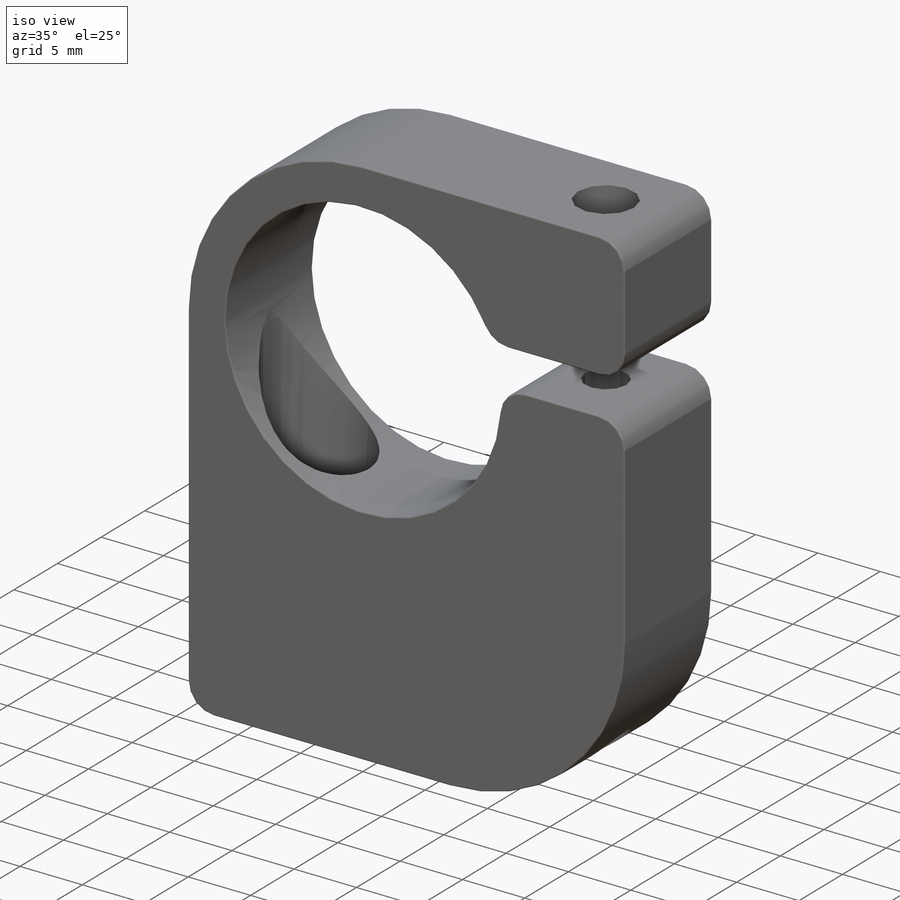
[diagram: iso view]
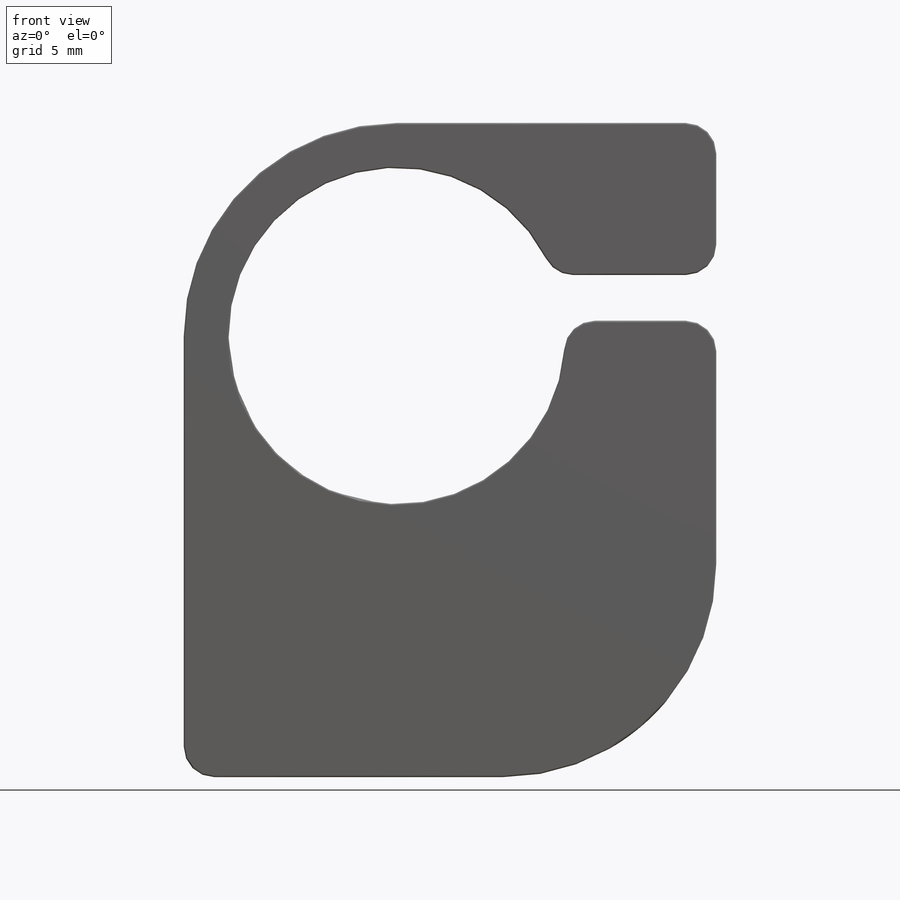
[diagram: front view]
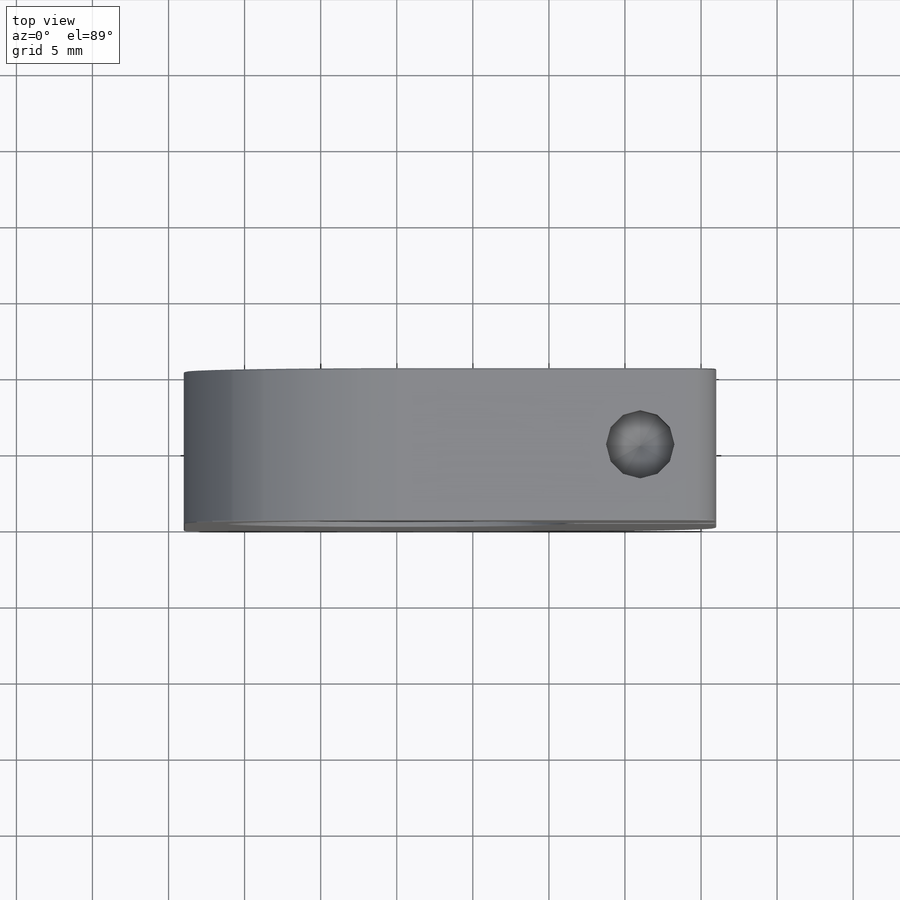
[diagram: top view]
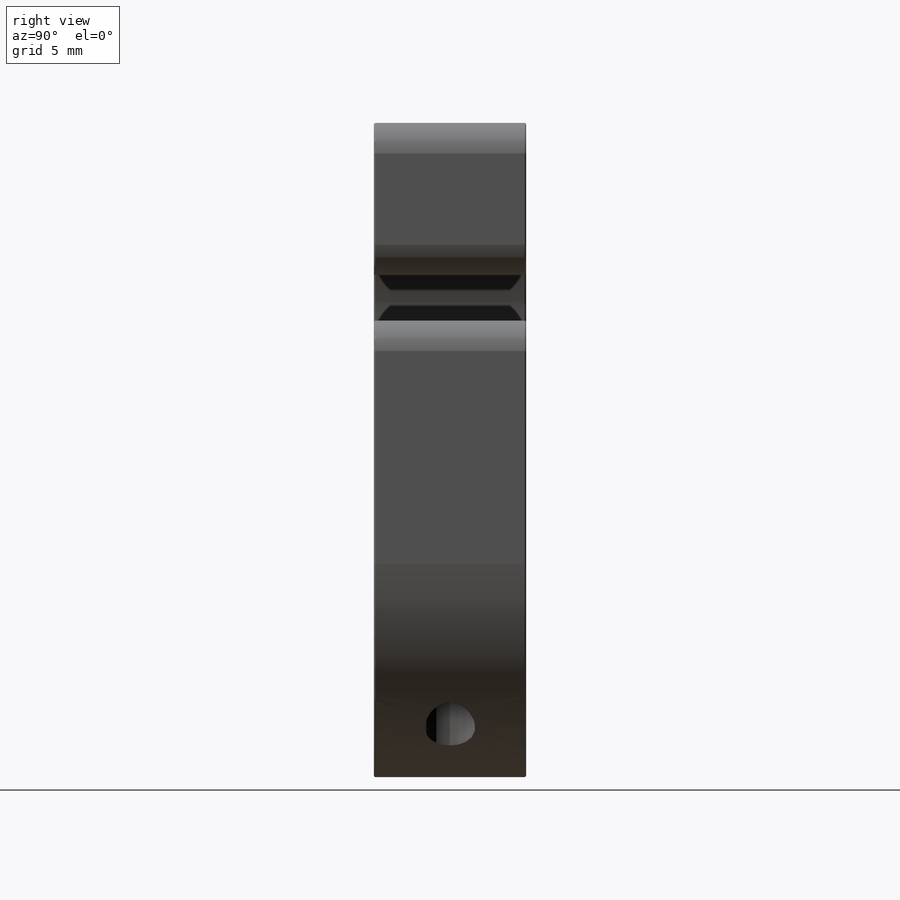
[diagram: right view]
SOLIDWORKS PART (.sldprt)
format: sldprt  version: not decoded by parser v0  size: 435,712 bytes
history: native  units: mm
features: sketch x9, plane x3, hole x3, thread x2, fillet x2, material x1, extrude x1 (+8 scaffold rows collapsed)
feature tree (29):
  scaffold x8  (default folders/planes/origin — collapsed)
  material  "Сплав 2024"
  plane  "Спереди"
  plane  "Сверху"
  plane  "Справа"
  sketch  "Эскиз1"  dims[D1=22.1mm D2=28.0mm D7=28.0mm D3=35.0mm D4=3.0mm D5=10.0mm D6=30.0mm]
  extrude  "Бобышка-Вытянуть1"  Depth=10mm
  sketch  "Эскиз2"  dims[D1=5.0mm]
  hole  "Отверстие с зазором M41"  [1 undecoded]
  sketch  "Эскиз4"
  sketch  "Эскиз3"  dims[hole-wizard template sketch: 47 standard entries collapsed; hole parameters kept: c15.Глубина отверстия=4.0mm c15.D3=~14.816244mm c15.Угол заточки сверла=118.0deg]
  hole  "Отверстие обработанное метчиком M4x0.71"  [1 undecoded]
  sketch  "Эскиз6"
  sketch  "Эскиз5"  dims[hole-wizard template sketch: 60 standard entries collapsed; hole parameters kept: c18.Глубина проходного сверла=30.0mm]
  thread  "Отверстие резьбы1"  Diameter=4mm  [1 undecoded]
  sketch  "Эскиз7"  dims[D1=7.0mm]
  hole  "Отверстие обработанное метчиком 3/8-161"  [1 undecoded]
  sketch  "Эскиз9"
  sketch  "Эскиз8"  dims[hole-wizard template sketch: 59 standard entries collapsed; hole parameters kept: c18.Диаметр проходного сверла=7.9375mm c18.Глубина проходного сверла=20.45mm]
  thread  "Отверстие резьбы2"  Diameter=9.525mm  [1 undecoded]
  fillet  "Скругление1"  Radius=2mm
  fillet  "Скругление2"  Radius=0.1mm
decode coverage: 11 of 17 modeling features carry decoded parameters
note: ~ marks probable driven/reference dimensions
note: 5 parameter values undecoded
summary: no parameter record found for 3 features
note: suppression state not decoded; provenance and decode notes live in map.json
